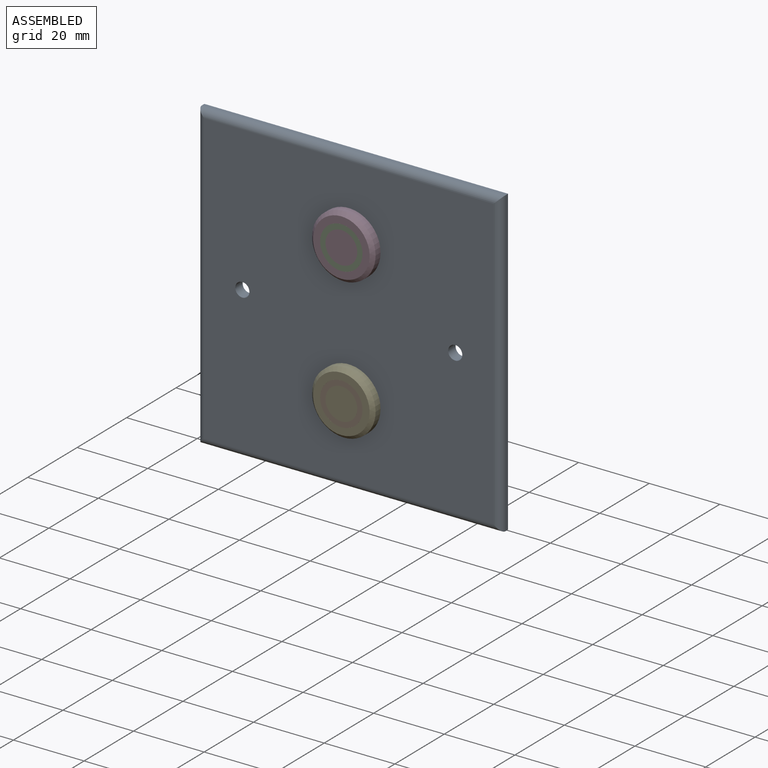
[diagram: assembled view]
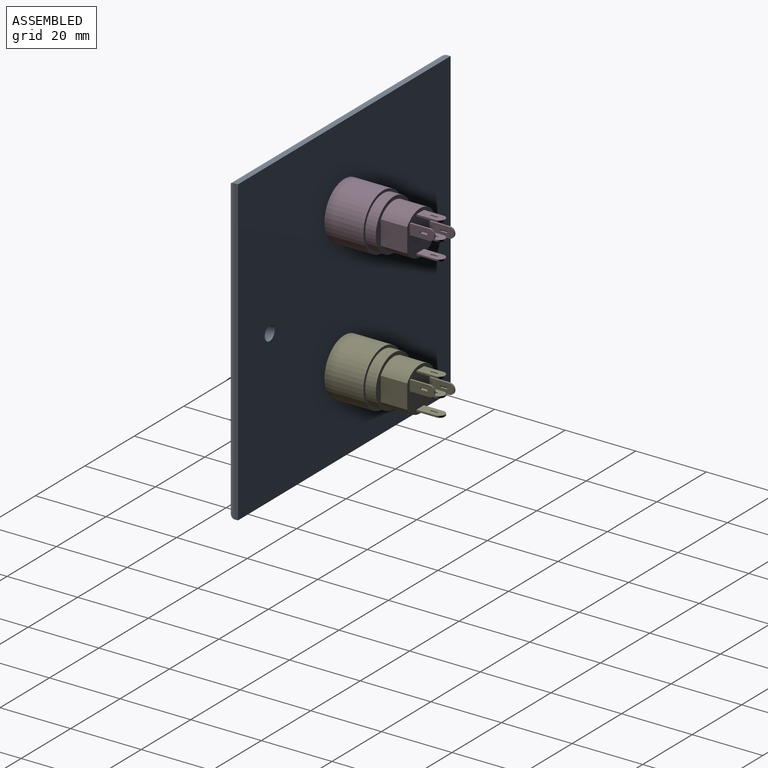
[diagram: assembled view, second angle]
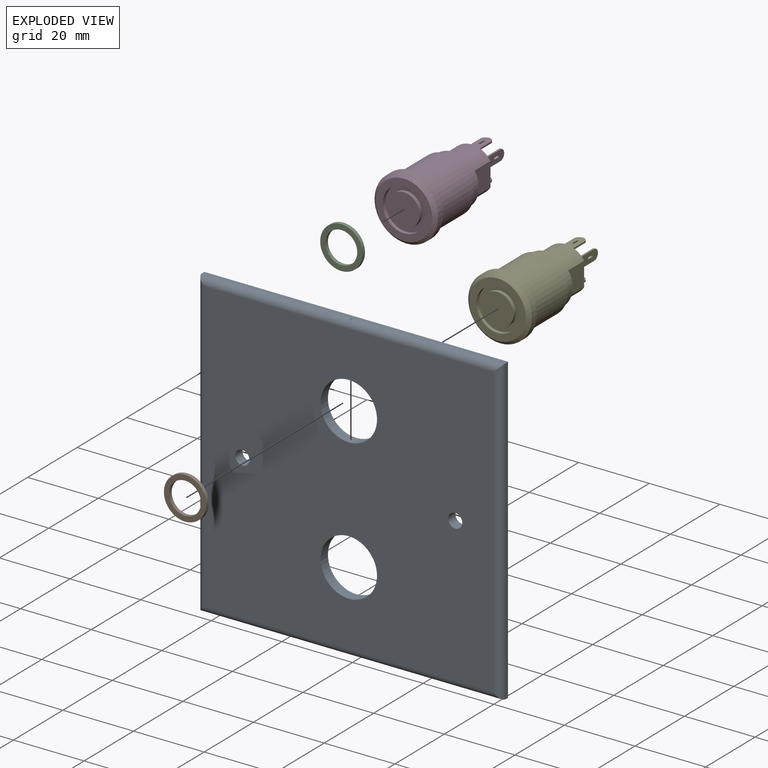
[diagram: exploded view]
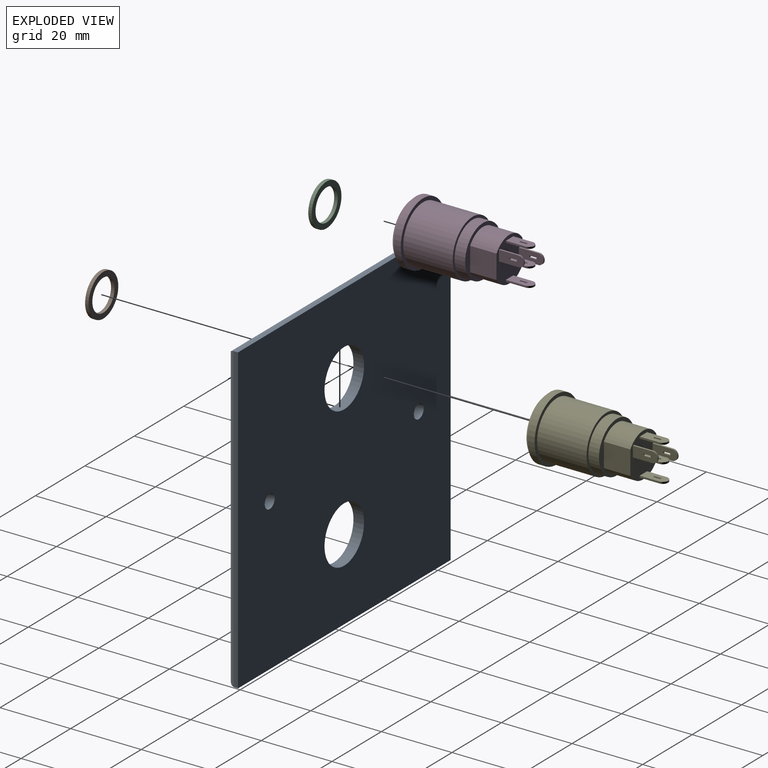
[diagram: exploded view, second angle]
ASSEMBLY  parts=5 mates=4
PART A: 14 faces, bbox 86x3x86 mm
  f0: plane 86x1mm, normal (0,0,-1), area 86mm2, adj f1,f3,f5,f10
  f1: plane 86x1mm, normal (1,0,0), area 86mm2, adj f0,f2,f5,f11
  f2: plane 86x1mm, normal (0,0,1), area 86mm2, adj f1,f3,f5,f13
  f3: plane 86x1mm, normal (-1,0,0), area 86mm2, adj f0,f2,f5,f12
  f4: plane 82x82mm, normal (0,-1,0), area 6296.7mm2, adj f6,f7,f8,f9,f10,f11,f12,f13
  f5: plane 86x86mm, normal (0,1,0), area 6968.7mm2, adj f0,f1,f2,f3,f6,f7,f8,f9
  f6: cylinder r=2mm len=4mm, axis (0,-1,0), area 37.7mm2, adj f4,f5
  f7: cylinder r=2mm len=4mm, axis (0,-1,0), area 37.7mm2, adj f4,f5
  f8: cylinder r=8mm len=16mm, axis (0,-1,0), area 150.8mm2, adj f4,f5
  f9: cylinder r=8mm len=16mm, axis (0,-1,0), area 150.8mm2, adj f4,f5
  f10: cylinder r=2mm len=86mm, axis (-1,0,0), area 265.6mm2, adj f0,f4,f11,f12
  f11: cylinder r=2mm len=86mm, axis (0,0,-1), area 265.6mm2, adj f1,f4,f10,f13
  f12: cylinder r=2mm len=86mm, axis (0,0,1), area 265.6mm2, adj f3,f4,f10,f13
  f13: cylinder r=2mm len=86mm, axis (1,0,0), area 265.6mm2, adj f2,f4,f11,f12
PART B: 4 faces, bbox 12x1x12 mm
  f0: cylinder r=4.5mm len=9mm, axis (0,1,0), area 28.3mm2, adj f2,f3
  f1: cylinder r=6mm len=12mm, axis (0,1,0), area 37.7mm2, adj f2,f3
  f2: plane 12x12mm, normal (0,-1,0), area 49.5mm2, adj f0,f1
  f3: plane 12x12mm, normal (0,1,0), area 49.5mm2, adj f0,f1
PART C: same geometry as B
PART D: 62 faces, bbox 18x34.5x18 mm
  f0: plane 7x3mm, normal (1,0,0), area 19mm2, adj f8,f35,f36,f40,f58,f59,f60,f61
  f1: plane 7x3mm, normal (-1,0,0), area 19mm2, adj f8,f35,f36,f40,f58,f59,f60,f61
  f2: plane 7x3mm, normal (0,0,-1), area 19mm2, adj f8,f25,f26,f37,f50,f51,f52,f53
  f3: plane 7x3mm, normal (0,0,1), area 19mm2, adj f8,f25,f26,f37,f50,f51,f52,f53
  f4: plane 7x3mm, normal (0,0,-1), area 19mm2, adj f8,f27,f28,f41,f46,f47,f48,f49
  f5: plane 7x3mm, normal (0,0,1), area 19mm2, adj f8,f27,f28,f41,f46,f47,f48,f49
  f6: plane 7x3mm, normal (0,0,-1), area 19mm2, adj f8,f29,f30,f38,f42,f43,f44,f45
  f7: plane 7x3mm, normal (0,0,1), area 19mm2, adj f8,f29,f30,f38,f42,f43,f44,f45
  f8: plane 12.5x10.5mm, normal (0,1,0), area 106mm2, adj f0,f1,f2,f3,f4,f5,f6,f7
  f9: cylinder r=6.25mm len=10.5mm, axis (0,-1,0), area 93.5mm2, adj f8,f21,f23,f24
  f10: cylinder r=8mm len=16mm, axis (0,-1,0), area 703.7mm2, adj f13,f20
  f11: cylinder r=9mm len=18mm, axis (0,1,0), area 113.1mm2, adj f13,f14
  f12: plane 16x16mm, normal (0,-1,0), area 88mm2, adj f14,f16
  f13: plane 18x18mm, normal (0,1,0), area 53.4mm2, adj f10,f11
  f14: cone r=8mm half-angle=45deg, axis (0,1,0), area 75.5mm2, adj f11,f12
  f15: cylinder r=4.5mm len=9mm, axis (0,-1,0), area 28.3mm2, adj f17,f18
  f16: cylinder r=6mm len=12mm, axis (0,-1,0), area 37.7mm2, adj f12,f17
  f17: plane 12x12mm, normal (0,-1,0), area 49.5mm2, adj f15,f16
  f18: plane 9x9mm, normal (0,-1,0), area 63.6mm2, adj f15
  f19: cylinder r=7.25mm len=14.5mm, axis (0,1,0), area 136.7mm2, adj f20,f21
  f20: plane 16x16mm, normal (0,1,0), area 35.9mm2, adj f10,f19
  f21: plane 14.5x14.5mm, normal (0,1,0), area 51.6mm2, adj f9,f19,f22,f23,f24
  f22: cylinder r=6.25mm len=10.5mm, axis (0,-1,0), area 93.5mm2, adj f8,f21,f23,f24
  f23: plane 7.5x6.78mm, normal (-1,0,0), area 50.9mm2, adj f8,f9,f21,f22
  f24: plane 7.5x6.78mm, normal (1,0,0), area 50.9mm2, adj f8,f9,f21,f22
  f25: plane 5.5x0.5mm, normal (-1,0,0), area 2.7mm2, adj f2,f3,f8,f37
  f26: plane 5.5x0.5mm, normal (1,0,0), area 2.7mm2, adj f2,f3,f8,f37
  f27: plane 5.5x0.5mm, normal (1,0,0), area 2.8mm2, adj f4,f5,f8,f41
  f28: plane 5.5x0.5mm, normal (-1,0,0), area 2.8mm2, adj f4,f5,f8,f41
  f29: plane 5.5x0.5mm, normal (1,0,0), area 2.8mm2, adj f6,f7,f8,f38
  f30: plane 5.5x0.5mm, normal (-1,0,0), area 2.8mm2, adj f6,f7,f8,f38
  f31: plane 5.5x0.5mm, normal (0,0,1), area 2.8mm2, adj f8,f32,f34,f39
  f32: plane 7x3mm, normal (1,0,0), area 19mm2, adj f8,f31,f33,f39,f54,f55,f56,f57
  f33: plane 5.5x0.5mm, normal (0,0,-1), area 2.8mm2, adj f8,f32,f34,f39
  f34: plane 7x3mm, normal (-1,0,0), area 19mm2, adj f8,f31,f33,f39,f54,f55,f56,f57
  f35: plane 5.5x0.5mm, normal (0,0,-1), area 2.8mm2, adj f0,f1,f8,f40
  f36: plane 5.5x0.5mm, normal (0,0,1), area 2.8mm2, adj f0,f1,f8,f40
  f37: cylinder r=1.5mm len=3mm, axis (0,0,-1), area 2.4mm2, adj f2,f3,f25,f26
  f38: cylinder r=1.5mm len=3mm, axis (0,0,1), area 2.4mm2, adj f6,f7,f29,f30
  f39: cylinder r=1.5mm len=3mm, axis (-1,0,0), area 2.4mm2, adj f31,f32,f33,f34
  f40: cylinder r=1.5mm len=3mm, axis (-1,0,0), area 2.4mm2, adj f0,f1,f35,f36
  f41: cylinder r=1.5mm len=3mm, axis (0,0,1), area 2.4mm2, adj f4,f5,f27,f28
  f42: plane 2x0.5mm, normal (-1,0,0), area 1mm2, adj f6,f7,f43,f45
  f43: plane 0.5x0.5mm, normal (0,-1,0), area 0.3mm2, adj f6,f7,f42,f44
  f44: plane 2x0.5mm, normal (1,0,0), area 1mm2, adj f6,f7,f43,f45
  f45: plane 0.5x0.5mm, normal (0,1,0), area 0.3mm2, adj f6,f7,f42,f44
  f46: plane 2x0.5mm, normal (-1,0,0), area 1mm2, adj f4,f5,f47,f49
  f47: plane 0.5x0.5mm, normal (0,-1,0), area 0.3mm2, adj f4,f5,f46,f48
  f48: plane 2x0.5mm, normal (1,0,0), area 1mm2, adj f4,f5,f47,f49
  f49: plane 0.5x0.5mm, normal (0,1,0), area 0.3mm2, adj f4,f5,f46,f48
  f50: plane 0.5x0.5mm, normal (0,1,0), area 0.3mm2, adj f2,f3,f51,f53
  f51: plane 2x0.5mm, normal (1,0,0), area 1mm2, adj f2,f3,f50,f52
  f52: plane 0.5x0.5mm, normal (0,-1,0), area 0.3mm2, adj f2,f3,f51,f53
  f53: plane 2x0.5mm, normal (-1,0,0), area 1mm2, adj f2,f3,f50,f52
  f54: plane 2x0.5mm, normal (0,0,-1), area 1mm2, adj f32,f34,f55,f56
  f55: plane 0.5x0.5mm, normal (0,1,0), area 0.3mm2, adj f32,f34,f54,f57
  f56: plane 0.5x0.5mm, normal (0,-1,0), area 0.3mm2, adj f32,f34,f54,f57
  f57: plane 2x0.5mm, normal (0,0,1), area 1mm2, adj f32,f34,f55,f56
  f58: plane 0.5x0.5mm, normal (0,1,0), area 0.3mm2, adj f0,f1,f59,f61
  f59: plane 2x0.5mm, normal (0,0,-1), area 1mm2, adj f0,f1,f58,f60
  f60: plane 0.5x0.5mm, normal (0,-1,0), area 0.3mm2, adj f0,f1,f59,f61
  f61: plane 2x0.5mm, normal (0,0,1), area 1mm2, adj f0,f1,f58,f60
PART E: same geometry as D
PLACE A at identity fixed
PLACE B rot(axis=(1,0,0),180deg) t=(0,-4.5,-20)mm
PLACE C rot(axis=(1,0,0),180deg) t=(0,-4.5,20)mm
PLACE D t=(0,-1.5,20)mm
PLACE E t=(0,-1.5,-20)mm
MATE fastened A.f8 <-> D.f9  axis (0,-1,0) through (0,-1.5,20)mm
MATE fastened D.f9 <-> C.f0  axis (0,-1,0) through (0,-4.5,20)mm
MATE fastened E.f9 <-> B.f0  axis (0,-1,0) through (0,-4.5,-20)mm
MATE fastened A.f9 <-> E.f9  axis (0,-1,0) through (0,-1.5,-20)mm
